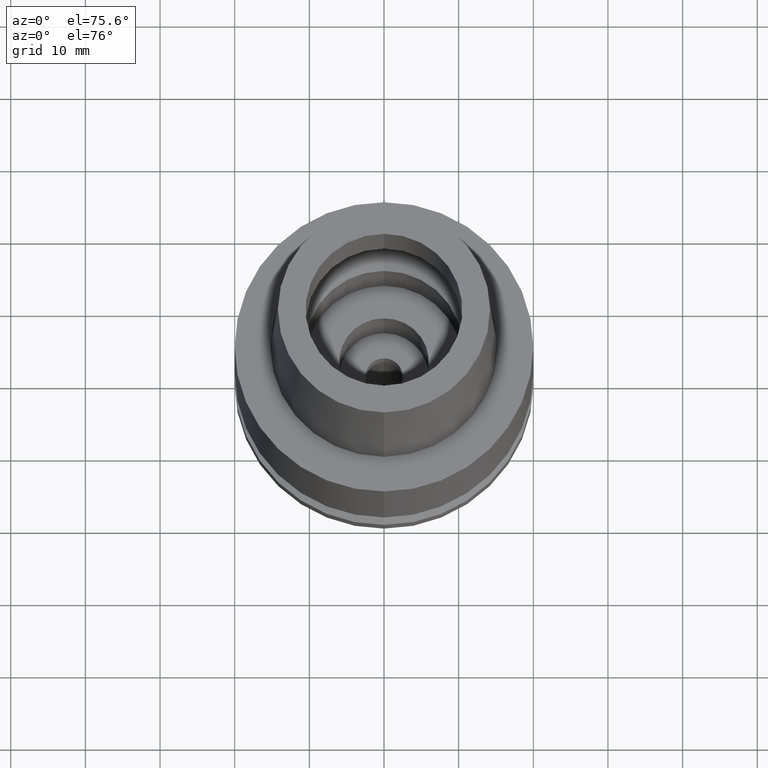
[diagram: clean part render]
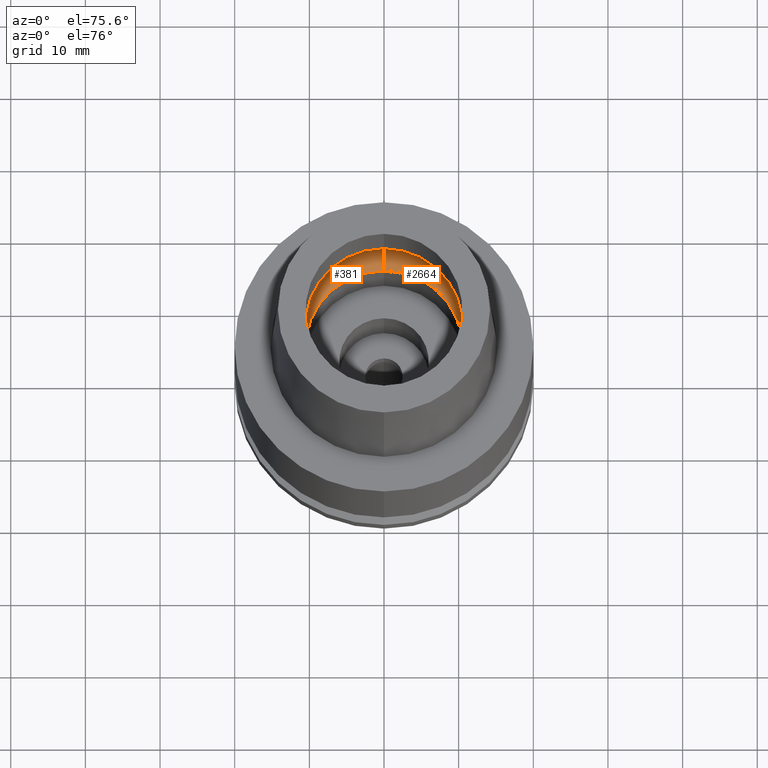
[diagram: same view with one multi-face feature highlighted, each face labeled with its STEP entity id]
A machine part, auxiliary view. The highlighted faces form ONE feature: a constant-radius fillet chain: 2 tangent blend faces with common blend radius 5 mm. The faces share edges in the B-rep.
Their STEP definitions:
[1] entity #2664 (Torus):
#44 = VERTEX_POINT ( 'NONE', #1498 ) ;
#276 = AXIS2_PLACEMENT_3D ( 'NONE', #1501, #1051, #1450 ) ;
#307 = CARTESIAN_POINT ( 'NONE',  ( 0.0000000000000000000, 7.750000000000000000, 4.225999999999999979 ) ) ;
#386 = ORIENTED_EDGE ( 'NONE', *, *, #1825, .T. ) ;
#430 = FACE_OUTER_BOUND ( 'NONE', #1980, .T. ) ;
#451 = CIRCLE ( 'NONE', #665, 4.999999999999994671 ) ;
#665 = AXIS2_PLACEMENT_3D ( 'NONE', #307, #1105, #1153 ) ;
#667 = TOROIDAL_SURFACE ( 'NONE', #276, 7.750000000000000000, 5.000000000000000000 ) ;
#733 = DIRECTION ( 'NONE',  ( 0.0000000000000000000, -1.000000000000000000, 0.0000000000000000000 ) ) ;
#790 = CARTESIAN_POINT ( 'NONE',  ( 0.0000000000000000000, -12.75000000000000000, 4.225999999999999979 ) ) ;
#877 = EDGE_CURVE ( 'NONE', #44, #1509, #2065, .T. ) ;
#1051 = DIRECTION ( 'NONE',  ( 0.0000000000000000000, 0.0000000000000000000, 1.000000000000000000 ) ) ;
#1087 = DIRECTION ( 'NONE',  ( -1.000000000000000000, 0.0000000000000000000, 0.0000000000000000000 ) ) ;
#1105 = DIRECTION ( 'NONE',  ( 1.000000000000000000, 0.0000000000000000000, 0.0000000000000000000 ) ) ;
#1153 = DIRECTION ( 'NONE',  ( 0.0000000000000000000, 0.5500000000000007105, -0.8351646544245028281 ) ) ;
#1205 = CIRCLE ( 'NONE', #2193, 4.999999999999994671 ) ;
#1273 = DIRECTION ( 'NONE',  ( 0.0000000000000000000, -0.5500000000000007105, -0.8351646544245028281 ) ) ;
#1450 = DIRECTION ( 'NONE',  ( 0.0000000000000000000, 1.000000000000000000, 0.0000000000000000000 ) ) ;
#1498 = CARTESIAN_POINT ( 'NONE',  ( 0.0000000000000000000, 12.75000000000000000, 4.225999999999999979 ) ) ;
#1501 = CARTESIAN_POINT ( 'NONE',  ( 0.0000000000000000000, 0.0000000000000000000, 4.225999999999999979 ) ) ;
#1509 = VERTEX_POINT ( 'NONE', #790 ) ;
#1561 = ORIENTED_EDGE ( 'NONE', *, *, #877, .F. ) ;
#1685 = DIRECTION ( 'NONE',  ( 0.0000000000000000000, 0.0000000000000000000, -1.000000000000000000 ) ) ;
#1753 = CARTESIAN_POINT ( 'NONE',  ( 0.0000000000000000000, 0.0000000000000000000, 0.05017672787749000163 ) ) ;
#1757 = AXIS2_PLACEMENT_3D ( 'NONE', #2304, #1685, #2503 ) ;
#1810 = CIRCLE ( 'NONE', #2150, 10.50000000000000000 ) ;
#1825 = EDGE_CURVE ( 'NONE', #1939, #1509, #1205, .T. ) ;
#1885 = EDGE_CURVE ( 'NONE', #1939, #2271, #1810, .T. ) ;
#1939 = VERTEX_POINT ( 'NONE', #2203 ) ;
#1968 = EDGE_CURVE ( 'NONE', #2271, #44, #451, .T. ) ;
#1980 = EDGE_LOOP ( 'NONE', ( #2692, #386, #1561, #2382 ) ) ;
#2065 = CIRCLE ( 'NONE', #1757, 12.75000000000000000 ) ;
#2150 = AXIS2_PLACEMENT_3D ( 'NONE', #1753, #2416, #733 ) ;
#2193 = AXIS2_PLACEMENT_3D ( 'NONE', #2298, #1087, #1273 ) ;
#2203 = CARTESIAN_POINT ( 'NONE',  ( 0.0000000000000000000, -10.50000000000000000, 0.05017672787749000163 ) ) ;
#2209 = CARTESIAN_POINT ( 'NONE',  ( 0.0000000000000000000, 10.50000000000000000, 0.05017672787752999741 ) ) ;
#2271 = VERTEX_POINT ( 'NONE', #2209 ) ;
#2298 = CARTESIAN_POINT ( 'NONE',  ( 0.0000000000000000000, -7.750000000000000000, 4.225999999999999979 ) ) ;
#2304 = CARTESIAN_POINT ( 'NONE',  ( 0.0000000000000000000, 0.0000000000000000000, 4.225999999999999979 ) ) ;
#2382 = ORIENTED_EDGE ( 'NONE', *, *, #1968, .F. ) ;
#2416 = DIRECTION ( 'NONE',  ( 0.0000000000000000000, 0.0000000000000000000, 1.000000000000000000 ) ) ;
#2503 = DIRECTION ( 'NONE',  ( 0.0000000000000000000, 1.000000000000000000, 0.0000000000000000000 ) ) ;
#2664 = ADVANCED_FACE ( 'NONE', ( #430 ), #667, .F. ) ;
#2692 = ORIENTED_EDGE ( 'NONE', *, *, #1885, .F. ) ;
[2] entity #381 (Torus):
#44 = VERTEX_POINT ( 'NONE', #1498 ) ;
#128 = DIRECTION ( 'NONE',  ( 0.0000000000000000000, -1.000000000000000000, 0.0000000000000000000 ) ) ;
#147 = CIRCLE ( 'NONE', #2538, 10.50000000000000000 ) ;
#277 = DIRECTION ( 'NONE',  ( 0.0000000000000000000, 0.0000000000000000000, 1.000000000000000000 ) ) ;
#307 = CARTESIAN_POINT ( 'NONE',  ( 0.0000000000000000000, 7.750000000000000000, 4.225999999999999979 ) ) ;
#381 = ADVANCED_FACE ( 'NONE', ( #1986 ), #1517, .F. ) ;
#411 = CIRCLE ( 'NONE', #544, 12.75000000000000000 ) ;
#451 = CIRCLE ( 'NONE', #665, 4.999999999999994671 ) ;
#520 = DIRECTION ( 'NONE',  ( 0.0000000000000000000, 1.000000000000000000, 0.0000000000000000000 ) ) ;
#544 = AXIS2_PLACEMENT_3D ( 'NONE', #719, #1352, #128 ) ;
#554 = AXIS2_PLACEMENT_3D ( 'NONE', #1512, #1738, #520 ) ;
#665 = AXIS2_PLACEMENT_3D ( 'NONE', #307, #1105, #1153 ) ;
#719 = CARTESIAN_POINT ( 'NONE',  ( 0.0000000000000000000, 0.0000000000000000000, 4.225999999999999979 ) ) ;
#790 = CARTESIAN_POINT ( 'NONE',  ( 0.0000000000000000000, -12.75000000000000000, 4.225999999999999979 ) ) ;
#1087 = DIRECTION ( 'NONE',  ( -1.000000000000000000, 0.0000000000000000000, 0.0000000000000000000 ) ) ;
#1094 = ORIENTED_EDGE ( 'NONE', *, *, #2055, .F. ) ;
#1105 = DIRECTION ( 'NONE',  ( 1.000000000000000000, 0.0000000000000000000, 0.0000000000000000000 ) ) ;
#1118 = ORIENTED_EDGE ( 'NONE', *, *, #1968, .T. ) ;
#1153 = DIRECTION ( 'NONE',  ( 0.0000000000000000000, 0.5500000000000007105, -0.8351646544245028281 ) ) ;
#1205 = CIRCLE ( 'NONE', #2193, 4.999999999999994671 ) ;
#1273 = DIRECTION ( 'NONE',  ( 0.0000000000000000000, -0.5500000000000007105, -0.8351646544245028281 ) ) ;
#1352 = DIRECTION ( 'NONE',  ( 0.0000000000000000000, 0.0000000000000000000, -1.000000000000000000 ) ) ;
#1418 = EDGE_LOOP ( 'NONE', ( #2139, #2675, #1094, #1118 ) ) ;
#1498 = CARTESIAN_POINT ( 'NONE',  ( 0.0000000000000000000, 12.75000000000000000, 4.225999999999999979 ) ) ;
#1509 = VERTEX_POINT ( 'NONE', #790 ) ;
#1512 = CARTESIAN_POINT ( 'NONE',  ( 0.0000000000000000000, 0.0000000000000000000, 4.225999999999999979 ) ) ;
#1517 = TOROIDAL_SURFACE ( 'NONE', #554, 7.750000000000000000, 5.000000000000000000 ) ;
#1695 = CARTESIAN_POINT ( 'NONE',  ( 0.0000000000000000000, 0.0000000000000000000, 0.05017672787749000163 ) ) ;
#1738 = DIRECTION ( 'NONE',  ( 0.0000000000000000000, 0.0000000000000000000, 1.000000000000000000 ) ) ;
#1825 = EDGE_CURVE ( 'NONE', #1939, #1509, #1205, .T. ) ;
#1939 = VERTEX_POINT ( 'NONE', #2203 ) ;
#1968 = EDGE_CURVE ( 'NONE', #2271, #44, #451, .T. ) ;
#1986 = FACE_OUTER_BOUND ( 'NONE', #1418, .T. ) ;
#2055 = EDGE_CURVE ( 'NONE', #2271, #1939, #147, .T. ) ;
#2139 = ORIENTED_EDGE ( 'NONE', *, *, #2393, .F. ) ;
#2193 = AXIS2_PLACEMENT_3D ( 'NONE', #2298, #1087, #1273 ) ;
#2203 = CARTESIAN_POINT ( 'NONE',  ( 0.0000000000000000000, -10.50000000000000000, 0.05017672787749000163 ) ) ;
#2209 = CARTESIAN_POINT ( 'NONE',  ( 0.0000000000000000000, 10.50000000000000000, 0.05017672787752999741 ) ) ;
#2271 = VERTEX_POINT ( 'NONE', #2209 ) ;
#2298 = CARTESIAN_POINT ( 'NONE',  ( 0.0000000000000000000, -7.750000000000000000, 4.225999999999999979 ) ) ;
#2393 = EDGE_CURVE ( 'NONE', #1509, #44, #411, .T. ) ;
#2538 = AXIS2_PLACEMENT_3D ( 'NONE', #1695, #277, #2554 ) ;
#2554 = DIRECTION ( 'NONE',  ( 0.0000000000000000000, 1.000000000000000000, 0.0000000000000000000 ) ) ;
#2675 = ORIENTED_EDGE ( 'NONE', *, *, #1825, .F. ) ;